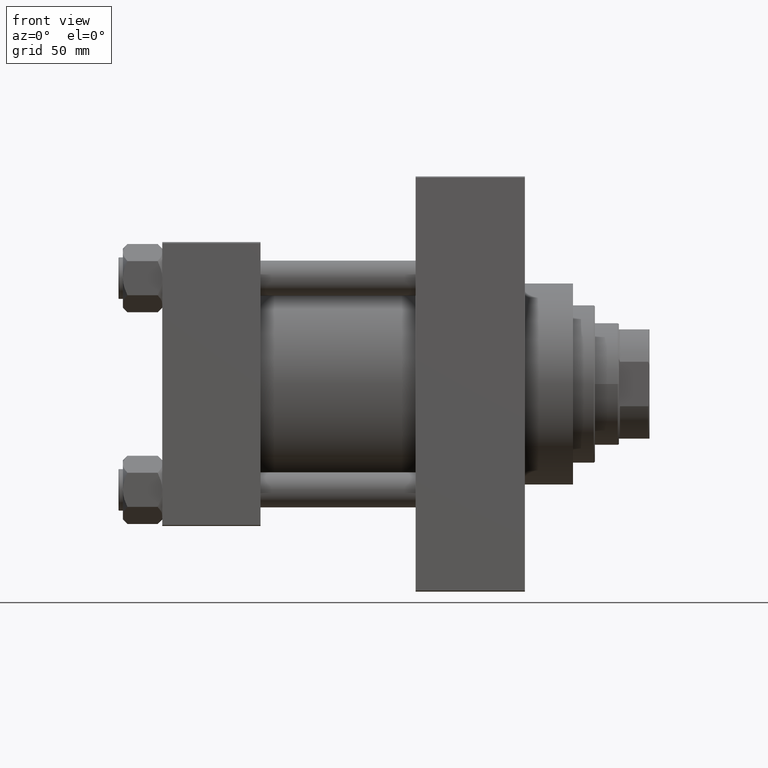
[diagram: clean part render]
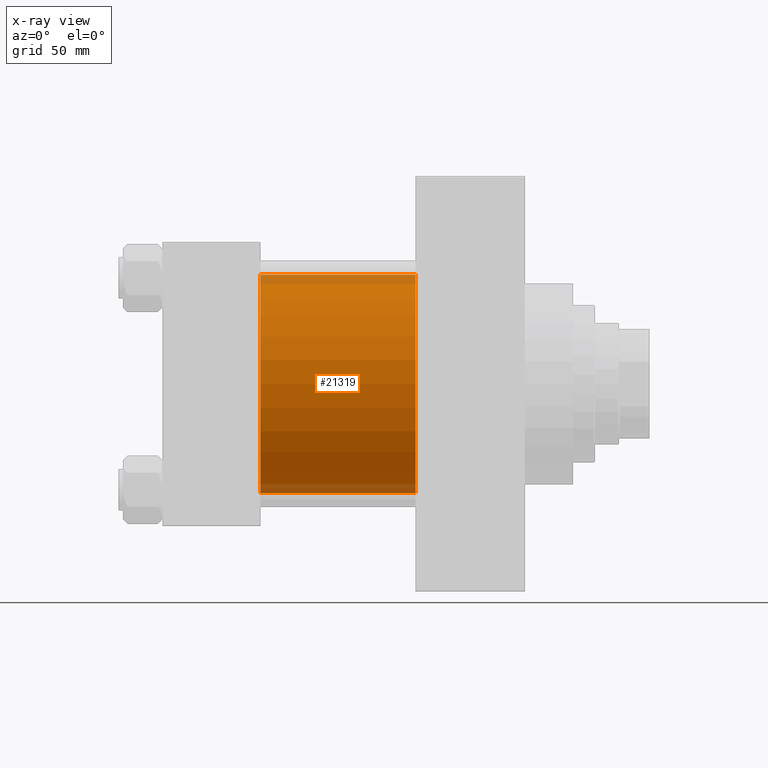
[diagram: x-ray — body ghosted, one internal face saturated and labeled with its STEP entity id]
A machine part, front view, then the same camera in x-ray: the body is ghosted and one INTERNAL B-rep face — a face not visible from any outside direction — is saturated and labeled: STEP entity #21319.
In plain terms, the highlighted cylindrical surface (partial cylindrical patch) has radius 50 mm, axis along (-1, -0, -0).
Its self-contained STEP definition (entity closure, byte-faithful):
#707 = CIRCLE ( 'NONE', #33872, 50.00000000000000000 ) ;
#2151 = CARTESIAN_POINT ( 'NONE',  ( 115.9999999999999858, -2.602085213965210642E-15, 50.00000000000000000 ) ) ;
#2210 = EDGE_CURVE ( 'NONE', #26178, #18639, #707, .T. ) ;
#2473 = ORIENTED_EDGE ( 'NONE', *, *, #9949, .F. ) ;
#2693 = CARTESIAN_POINT ( 'NONE',  ( 115.9999999999999858, -2.602085213965210642E-15, 0.000000000000000000 ) ) ;
#5608 = DIRECTION ( 'NONE',  ( 1.000000000000000000, 0.000000000000000000, 0.000000000000000000 ) ) ;
#6253 = LINE ( 'NONE', #2151, #15588 ) ;
#7794 = ORIENTED_EDGE ( 'NONE', *, *, #2210, .F. ) ;
#9949 = EDGE_CURVE ( 'NONE', #24337, #26178, #6253, .T. ) ;
#13014 = CARTESIAN_POINT ( 'NONE',  ( 45.00000000000000000, -2.602085213965210642E-15, 50.00000000000000000 ) ) ;
#13153 = DIRECTION ( 'NONE',  ( 0.000000000000000000, 0.000000000000000000, -1.000000000000000000 ) ) ;
#13703 = DIRECTION ( 'NONE',  ( -1.000000000000000000, -0.000000000000000000, -0.000000000000000000 ) ) ;
#15588 = VECTOR ( 'NONE', #13703, 1000.000000000000000 ) ;
#18639 = VERTEX_POINT ( 'NONE', #40421 ) ;
#18961 = EDGE_CURVE ( 'NONE', #46473, #18639, #47349, .T. ) ;
#19025 = FACE_OUTER_BOUND ( 'NONE', #27826, .T. ) ;
#20146 = CARTESIAN_POINT ( 'NONE',  ( 45.00000000000000000, -2.602085213965210642E-15, 0.000000000000000000 ) ) ;
#20897 = CARTESIAN_POINT ( 'NONE',  ( 115.9999999999999858, 3.521148781771555838E-15, -50.00000000000000000 ) ) ;
#21319 = ADVANCED_FACE ( 'NONE', ( #19025 ), #37178, .F. ) ;
#24337 = VERTEX_POINT ( 'NONE', #41282 ) ;
#25185 = VECTOR ( 'NONE', #36500, 1000.000000000000000 ) ;
#26036 = DIRECTION ( 'NONE',  ( -1.000000000000000000, -0.000000000000000000, -0.000000000000000000 ) ) ;
#26178 = VERTEX_POINT ( 'NONE', #13014 ) ;
#27826 = EDGE_LOOP ( 'NONE', ( #29507, #36376, #7794, #2473 ) ) ;
#29210 = CARTESIAN_POINT ( 'NONE',  ( 115.9999999999999858, -2.602085213965210642E-15, 0.000000000000000000 ) ) ;
#29507 = ORIENTED_EDGE ( 'NONE', *, *, #46097, .T. ) ;
#31672 = DIRECTION ( 'NONE',  ( 0.000000000000000000, 0.000000000000000000, -1.000000000000000000 ) ) ;
#33872 = AXIS2_PLACEMENT_3D ( 'NONE', #20146, #34656, #13153 ) ;
#34656 = DIRECTION ( 'NONE',  ( 1.000000000000000000, 0.000000000000000000, 0.000000000000000000 ) ) ;
#36376 = ORIENTED_EDGE ( 'NONE', *, *, #18961, .T. ) ;
#36500 = DIRECTION ( 'NONE',  ( -1.000000000000000000, -0.000000000000000000, -0.000000000000000000 ) ) ;
#36967 = CARTESIAN_POINT ( 'NONE',  ( 115.9999999999999858, 3.521148781771555838E-15, -50.00000000000000000 ) ) ;
#37178 = CYLINDRICAL_SURFACE ( 'NONE', #46742, 50.00000000000000000 ) ;
#37961 = CIRCLE ( 'NONE', #46442, 50.00000000000000000 ) ;
#40421 = CARTESIAN_POINT ( 'NONE',  ( 45.00000000000000000, 3.521148781771555838E-15, -50.00000000000000000 ) ) ;
#41282 = CARTESIAN_POINT ( 'NONE',  ( 115.9999999999999858, -2.602085213965210642E-15, 50.00000000000000000 ) ) ;
#43935 = DIRECTION ( 'NONE',  ( 0.000000000000000000, 0.000000000000000000, 1.000000000000000000 ) ) ;
#46097 = EDGE_CURVE ( 'NONE', #24337, #46473, #37961, .T. ) ;
#46442 = AXIS2_PLACEMENT_3D ( 'NONE', #2693, #5608, #31672 ) ;
#46473 = VERTEX_POINT ( 'NONE', #20897 ) ;
#46742 = AXIS2_PLACEMENT_3D ( 'NONE', #29210, #26036, #43935 ) ;
#47349 = LINE ( 'NONE', #36967, #25185 ) ;